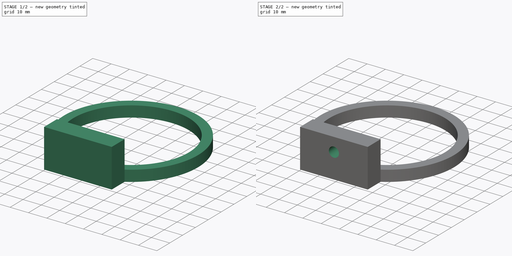
[diagram: build sequence overview — one tinted view per stage of 2, left to right]
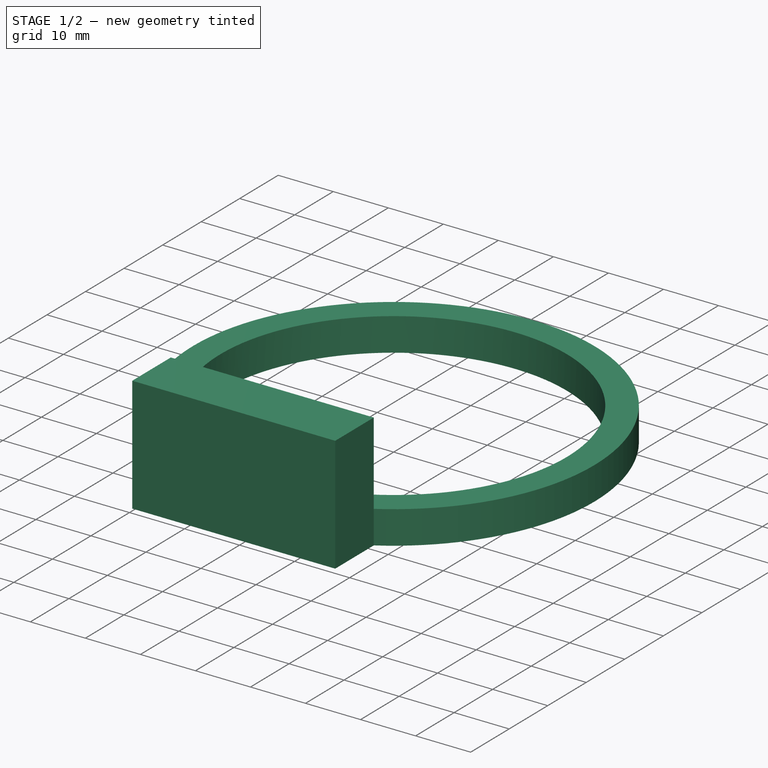
[diagram: stage 1 of 2 — iso view after this stage's code; geometry added in this stage tinted green]
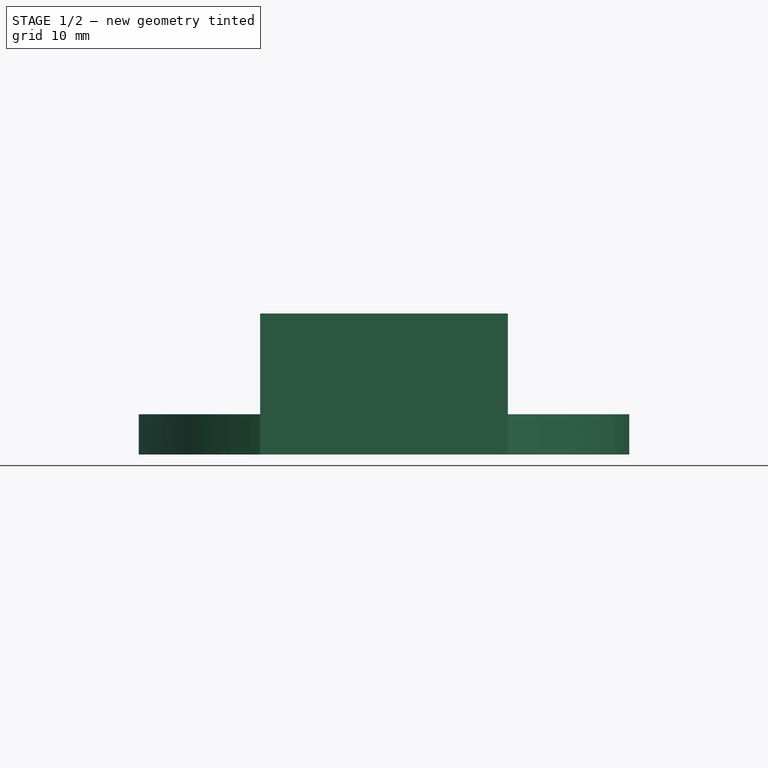
[diagram: stage 1 of 2 — front view after this stage's code; geometry added in this stage tinted green]
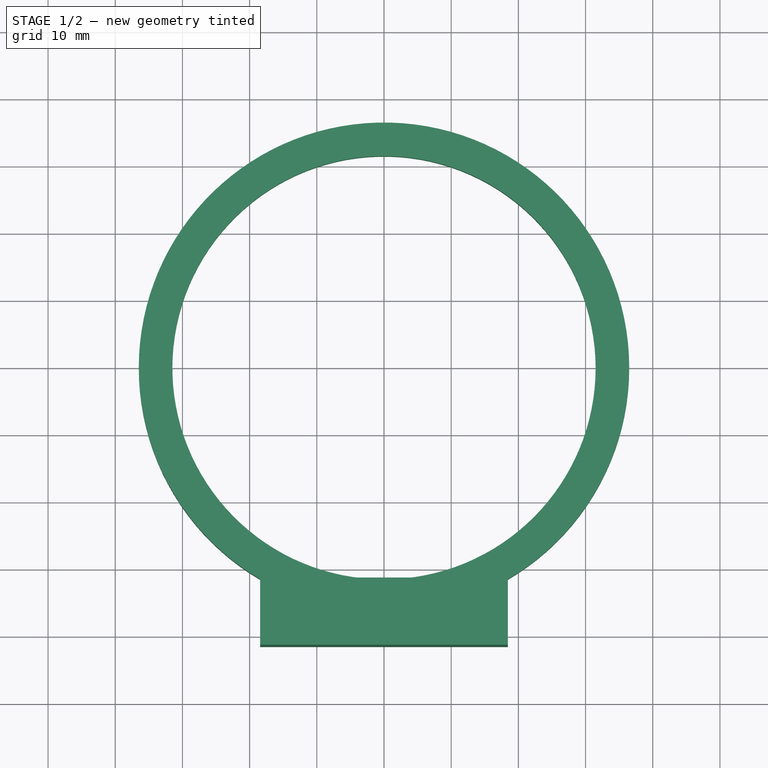
[diagram: stage 1 of 2 — top view after this stage's code; geometry added in this stage tinted green]
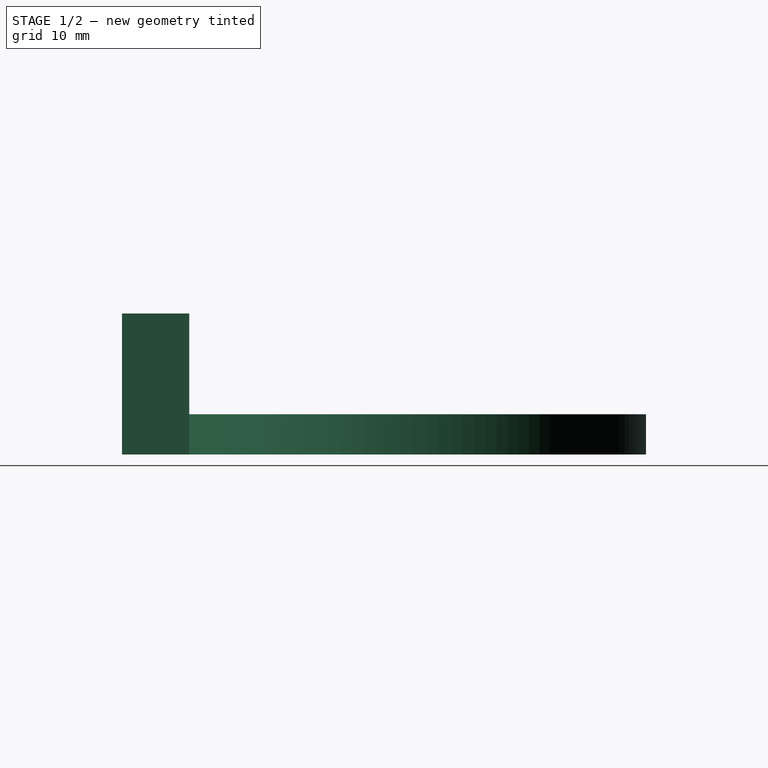
[diagram: stage 1 of 2 — right view after this stage's code; geometry added in this stage tinted green]
FCSTD DOCUMENT  (FreeCAD 2022.111R30764 (Git))
Label: Watercooling-pump-bracket-top
License: All rights reserved
LicenseURL: http://en.wikipedia.org/wiki/All_rights_reserved
objects: Sketcher::SketchObject×3, PartDesign::Pad×2, PartDesign::Hole×1, PartDesign::Body×1
note: 13 computed .brp shape members not serialized (recipe doc carries the construction recipe); baked Part::Feature solids carry a one-line shape summary decoded from their .brp

FEATURE [Sketcher::SketchObject] Sketch
  FullyConstrained = true
  TreeRank = 13
  sketch-geometry (5):
    g0: Circle CenterX=0 CenterY=0 CenterZ=0 NormalX=0 NormalY=0 NormalZ=1 AngleXU=0 Radius=31.5
    g1: ArcOfCircle CenterX=0 CenterY=0 CenterZ=0 NormalX=0 NormalY=0 NormalZ=1 AngleXU=0 Radius=36.5 StartAngle=5.24198 EndAngle=10.466
    g2: LineSegment StartX=-18.4391 StartY=-31.5 StartZ=0 EndX=-18.4391 EndY=-41.5 EndZ=0
    g3: LineSegment StartX=-18.4391 StartY=-41.5 StartZ=0 EndX=18.4391 EndY=-41.5 EndZ=0
    g4: LineSegment StartX=18.4391 StartY=-41.5 StartZ=0 EndX=18.4391 EndY=-31.5 EndZ=0
  constraints (14):
    c: Coincident(g0,g-1)
    c: Radius(g0) = 31.5
    c: Coincident(g1,g0)
    c: DistanceY(g1,g1) = 0
    c: Radius(g1) = 36.5
    c: DistanceY(g1,g0) = 31.5
    c: Vertical(g2)
    c: Coincident(g2,g3)
    c: Horizontal(g3)
    c: Coincident(g3,g4)
    c: Coincident(g4,g1)
    c: Coincident(g2,g1)
    c: Vertical(g4)
    c: DistanceY(g2,g2) = 10
FEATURE [PartDesign::Pad] Pad
  AddSubType = 0
  AlongSketchNormal = false
  CheckUpToFaceLimits = true
  ClaimChildren = false
  Direction = (0,0,1)
  Fit = 0
  FitJoin = 0
  InnerFit = 0
  InnerFitJoin = 0
  InnerTaperAngle = 0
  InnerTaperAngleRev = 0
  Length = 6
  Length2 = 100
  Linearize = true
  NewSolid = false
  Profile = -> Sketch
  Suppress = false
  TreeRank = 14
  Type = 0
  _ProfileBasedVersion = 1
FEATURE [Sketcher::SketchObject] Sketch001
  ExternalGeometry = -> [Pad]
  FullyConstrained = true
  MapMode = 5
  Placement = pos=(0,0,6) rot=(0,0,1;0rad)
  Support = -> [Pad]
  TreeRank = 15
  sketch-geometry (4):
    g0: LineSegment StartX=-18.4391 StartY=-31.5 StartZ=0 EndX=18.4391 EndY=-31.5 EndZ=0
    g1: LineSegment StartX=18.4391 StartY=-31.5 StartZ=0 EndX=18.4391 EndY=-41.5 EndZ=0
    g2: LineSegment StartX=18.4391 StartY=-41.5 StartZ=0 EndX=-18.4391 EndY=-41.5 EndZ=0
    g3: LineSegment StartX=-18.4391 StartY=-41.5 StartZ=0 EndX=-18.4391 EndY=-31.5 EndZ=0
  constraints (10):
    c: Coincident(g0,g1)
    c: Coincident(g1,g2)
    c: Coincident(g2,g3)
    c: Coincident(g3,g0)
    c: Horizontal(g0)
    c: Horizontal(g2)
    c: Vertical(g1)
    c: Vertical(g3)
    c: Coincident(g0,g-4)
    c: Coincident(g1,g-5)
FEATURE [PartDesign::Pad] Pad001
  AddSubType = 0
  AlongSketchNormal = false
  BaseFeature = -> Pad
  CheckUpToFaceLimits = true
  ClaimChildren = false
  Direction = (0,0,1)
  Fit = 0
  FitJoin = 0
  InnerFit = 0
  InnerFitJoin = 0
  InnerTaperAngle = 0
  InnerTaperAngleRev = 0
  Length = 15
  Length2 = 100
  Linearize = true
  NewSolid = false
  Profile = -> Sketch001
  Suppress = false
  TreeRank = 16
  Type = 0
  _ProfileBasedVersion = 1
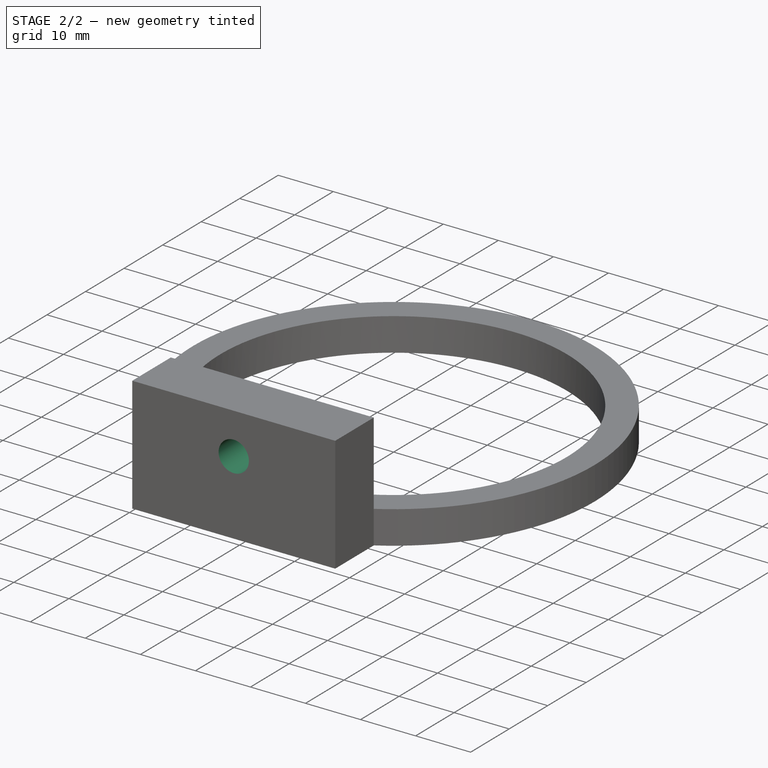
[diagram: stage 2 of 2 — iso view after this stage's code; geometry added in this stage tinted green]
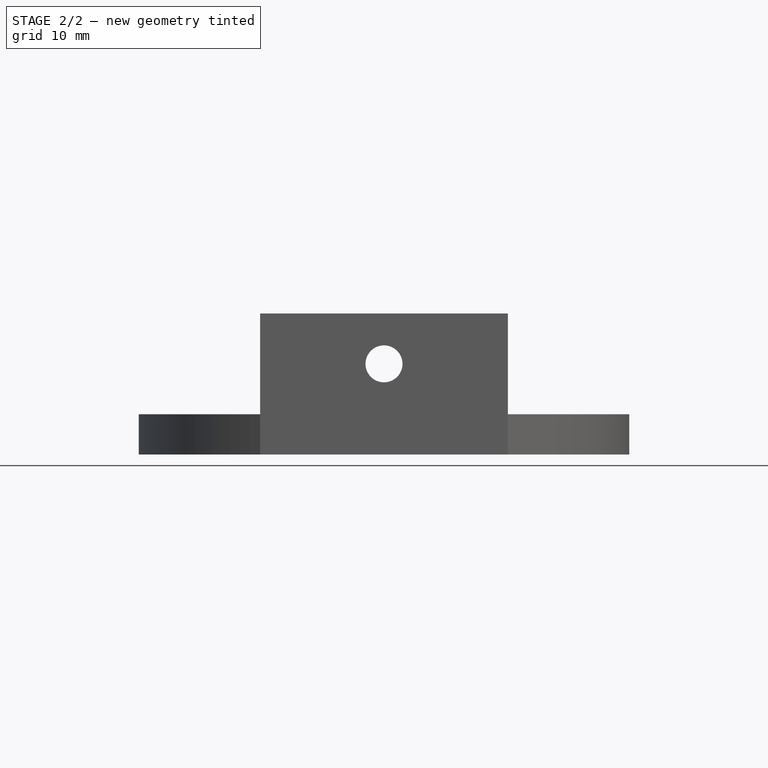
[diagram: stage 2 of 2 — front view after this stage's code; geometry added in this stage tinted green]
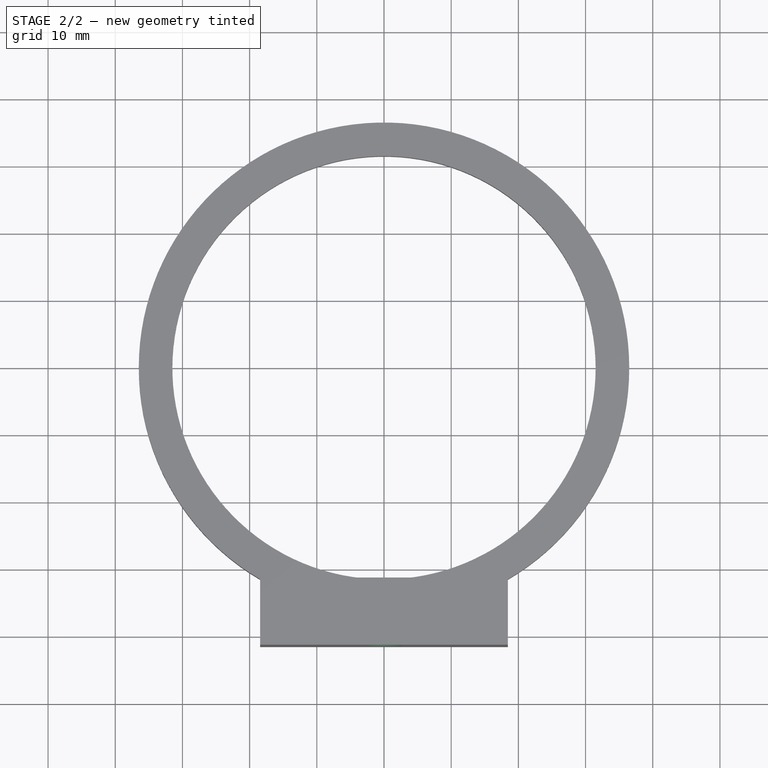
[diagram: stage 2 of 2 — top view after this stage's code; geometry added in this stage tinted green]
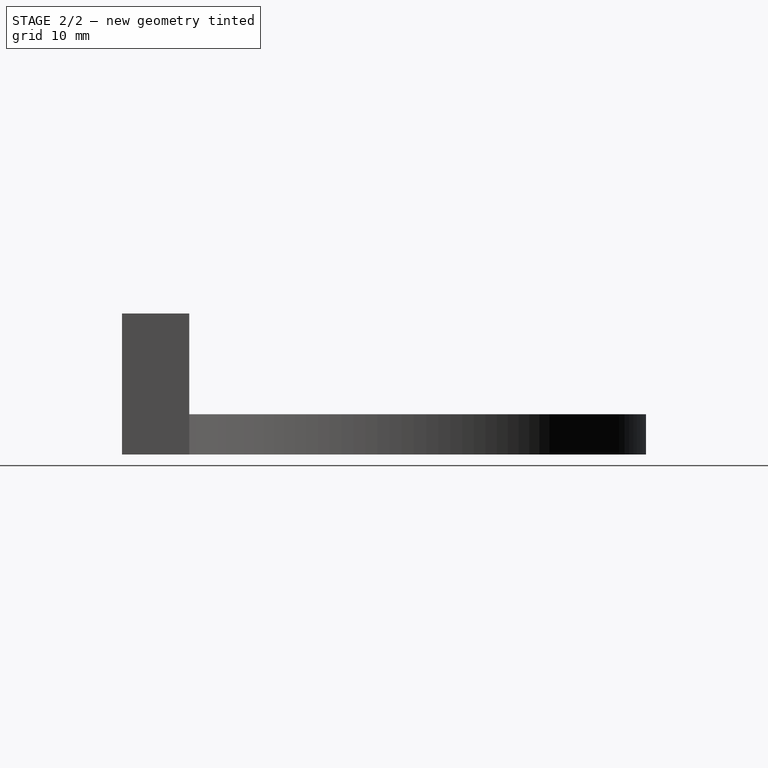
[diagram: stage 2 of 2 — right view after this stage's code; geometry added in this stage tinted green]
FEATURE [Sketcher::SketchObject] Sketch002
  ExternalGeometry = -> [Pad001]
  FullyConstrained = true
  MapMode = 5
  Placement = pos=(0,-31.5,0) rot=(0,0.707107,0.707107;3.14159rad)
  Support = -> [Pad001]
  TreeRank = 17
  sketch-geometry (1):
    g0: Circle CenterX=0 CenterY=13.5 CenterZ=0 NormalX=0 NormalY=0 NormalZ=1 AngleXU=0 Radius=2.6
  constraints (3):
    c: PointOnObject(g0,g-2)
    c: DistanceY(g0,g-3) = 7.5
    c: Radius(g0) = 2.6
FEATURE [PartDesign::Hole] Hole
  AddSubType = 1
  BaseFeature = -> Pad001
  ClaimChildren = false
  CustomThreadClearance = 0
  Depth = 25
  DepthType = 0
  Diameter = 5.5
  DrillForDepth = false
  DrillPoint = 1
  DrillPointAngle = 118
  Fit = 0
  FitJoin = 0
  HoleCutCountersinkAngle = 90
  HoleCutCustomValues = false
  HoleCutDepth = 4.1
  HoleCutDiameter = 10.1
  HoleCutType = 8
  InnerFit = 0
  InnerFitJoin = 0
  Linearize = true
  ModelThread = false
  NewSolid = false
  Profile = -> Sketch002
  Suppress = false
  Tapered = false
  TaperedAngle = 90
  ThreadClass = 0
  ThreadDepth = 25
  ThreadDepthType = 0
  ThreadDirection = 0
  ThreadFit = 0
  ThreadSize = 13
  ThreadType = 1
  Threaded = false
  TreeRank = 18
  UseCustomThreadClearance = false
  _ProfileBasedVersion = 1
FEATURE [PartDesign::Body] Body
  AutoGroupSolids = false
  ExportMode = 0
  Group = -> [Sketch,Pad,Sketch001,Pad001,Sketch002,Hole]
  Origin = -> Origin
  Tip = -> Hole
  TreeRank = 12
  _ExportChildren = -> [Pad,Pad001,Hole]
  _GroupVersion = 1
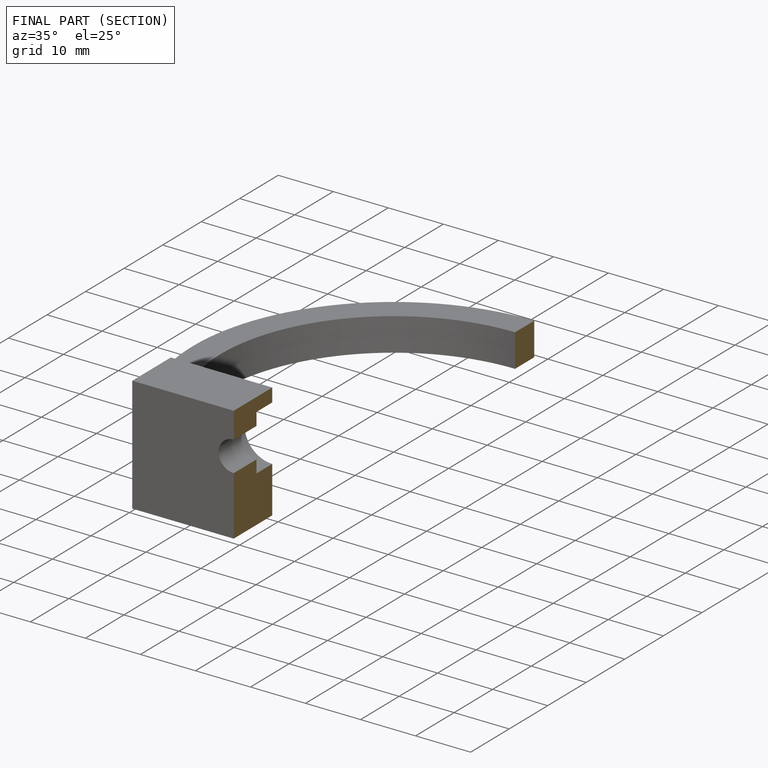
[diagram: finished part — half-section view (interior)]
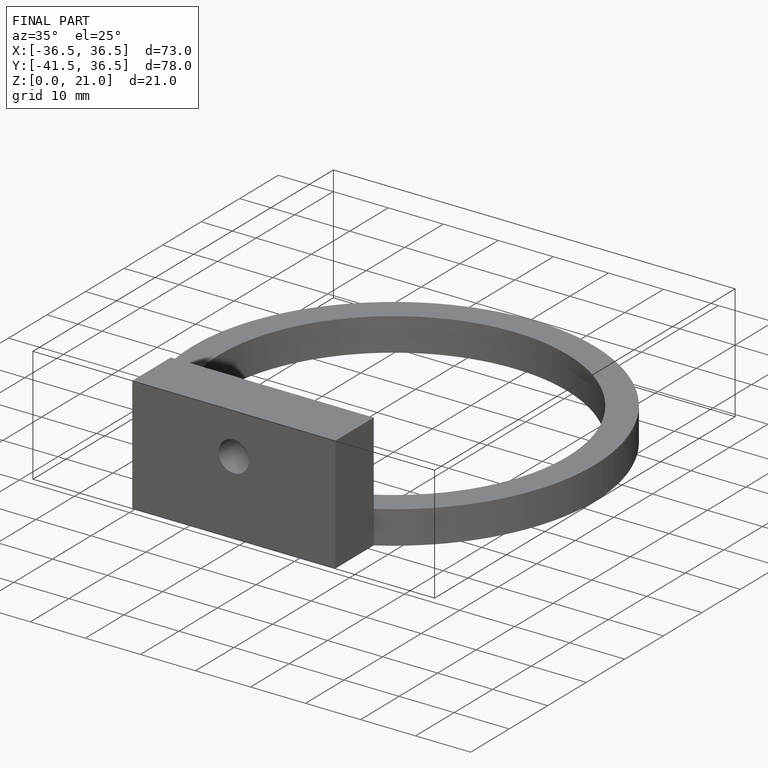
[diagram: finished part — iso view with bounding-box wireframe]
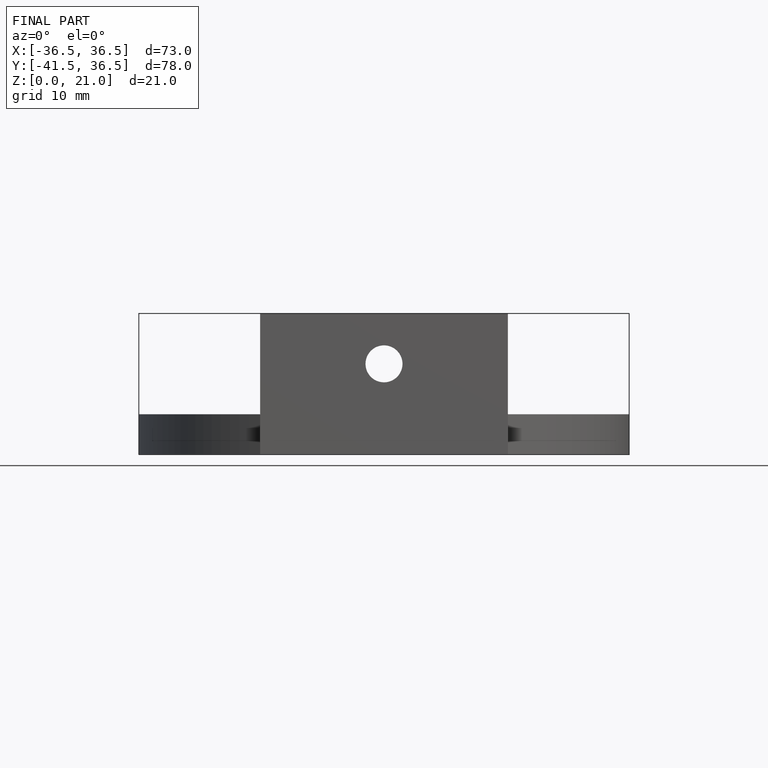
[diagram: finished part — front view with bounding-box wireframe]
